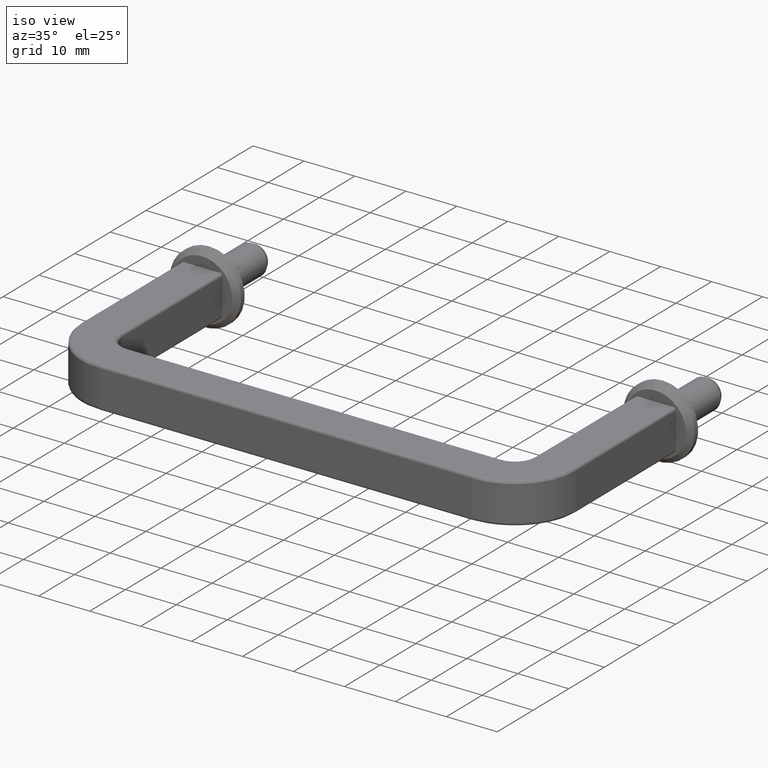
[diagram: clean part render]
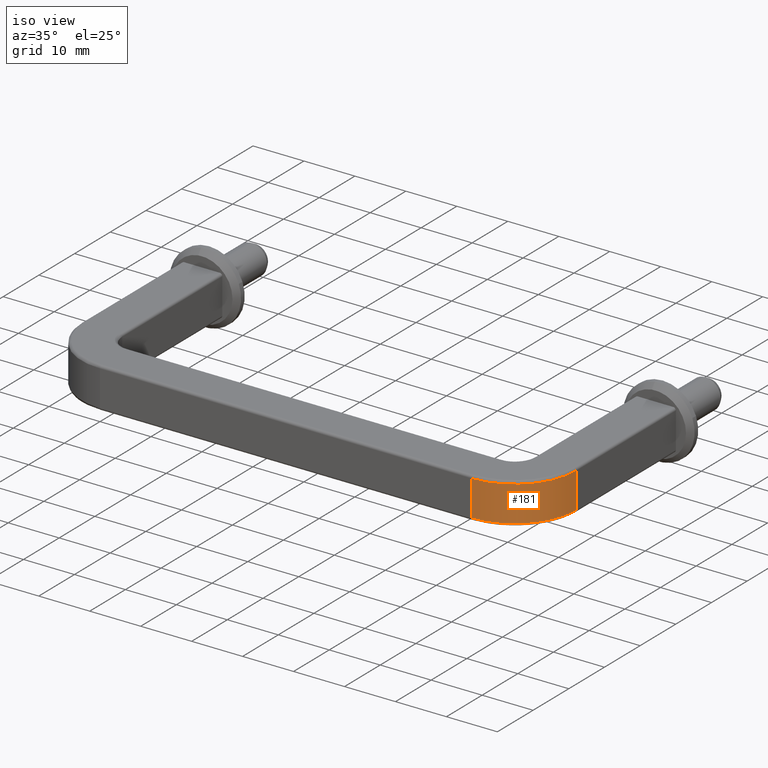
[diagram: same view with one face highlighted and labeled with its STEP entity id]
A machine part, iso view. The second image highlights one B-rep face of the part: STEP entity #181.
In plain terms, the highlighted cylindrical surface (partial cylindrical patch) has radius 12 mm, axis along (0, -0, -1).
Its self-contained STEP definition (entity closure, byte-faithful):
#181=ADVANCED_FACE('',(#358),#357,.T.);
#357=CYLINDRICAL_SURFACE('',#784,1.20000000000E+01);
#358=FACE_OUTER_BOUND('',#785,.T.);
#781=CARTESIAN_POINT('',(3.65000000000E+01,-4.20000000000E+00,4.30000000000E+01));
#782=DIRECTION('',(2.67250130707E-16,-1.00000000000E+00,6.17216333810E-16));
#783=DIRECTION('',(6.75590207616E-01,-2.74508043538E-16,-7.37277336810E-01));
#784=AXIS2_PLACEMENT_3D('',#781,#782,#783);
#785=EDGE_LOOP('',(#1279,#1280,#1281,#1282));
#1279=ORIENTED_EDGE('',*,*,#1475,.F.);
#1280=ORIENTED_EDGE('',*,*,#1493,.F.);
#1281=ORIENTED_EDGE('',*,*,#1494,.T.);
#1282=ORIENTED_EDGE('',*,*,#1495,.T.);
#1475=EDGE_CURVE('',#1727,#1734,#1735,.T.);
#1493=EDGE_CURVE('',#1855,#1727,#1856,.T.);
#1494=EDGE_CURVE('',#1855,#1862,#1863,.T.);
#1495=EDGE_CURVE('',#1862,#1734,#1869,.T.);
#1727=VERTEX_POINT('',#2466);
#1734=VERTEX_POINT('',#2470);
#1735=LINE('',#2471,#2472);
#1855=VERTEX_POINT('',#2545);
#1856=CIRCLE('',#2549,1.20000000000E+01);
#1862=VERTEX_POINT('',#2550);
#1863=LINE('',#2551,#2552);
#1869=CIRCLE('',#2557,1.20000000000E+01);
#2466=CARTESIAN_POINT('',(4.85000000000E+01,3.50000000000E+00,4.30000000000E+01));
#2470=CARTESIAN_POINT('',(4.85000000000E+01,-3.50000000000E+00,4.30000000000E+01));
#2471=CARTESIAN_POINT('',(4.85000000000E+01,3.50000000000E+00,4.30000000000E+01));
#2472=VECTOR('',#2473,7.00000000000E+00);
#2473=DIRECTION('',(0.00000000000E+00,-1.00000000000E+00,0.00000000000E+00));
#2545=CARTESIAN_POINT('',(3.65000000000E+01,3.50000000000E+00,5.50000000000E+01));
#2546=CARTESIAN_POINT('',(3.65000000000E+01,3.50000000000E+00,4.30000000000E+01));
#2547=DIRECTION('',(-0.00000000000E+00,1.00000000000E+00,0.00000000000E+00));
#2548=DIRECTION('',(-5.56591809679E-14,-0.00000000000E+00,-1.00000000000E+00));
#2549=AXIS2_PLACEMENT_3D('',#2546,#2547,#2548);
#2550=CARTESIAN_POINT('',(3.65000000000E+01,-3.50000000000E+00,5.50000000000E+01));
#2551=CARTESIAN_POINT('',(3.65000000000E+01,3.50000000000E+00,5.50000000000E+01));
#2552=VECTOR('',#2553,7.00000000000E+00);
#2553=DIRECTION('',(0.00000000000E+00,-1.00000000000E+00,0.00000000000E+00));
#2554=CARTESIAN_POINT('',(3.65000000000E+01,-3.50000000000E+00,4.30000000000E+01));
#2555=DIRECTION('',(2.61682076447E-17,1.00000000000E+00,-7.40148683083E-17));
#2556=DIRECTION('',(-5.56591809679E-14,-7.40148683083E-17,-1.00000000000E+00));
#2557=AXIS2_PLACEMENT_3D('',#2554,#2555,#2556);